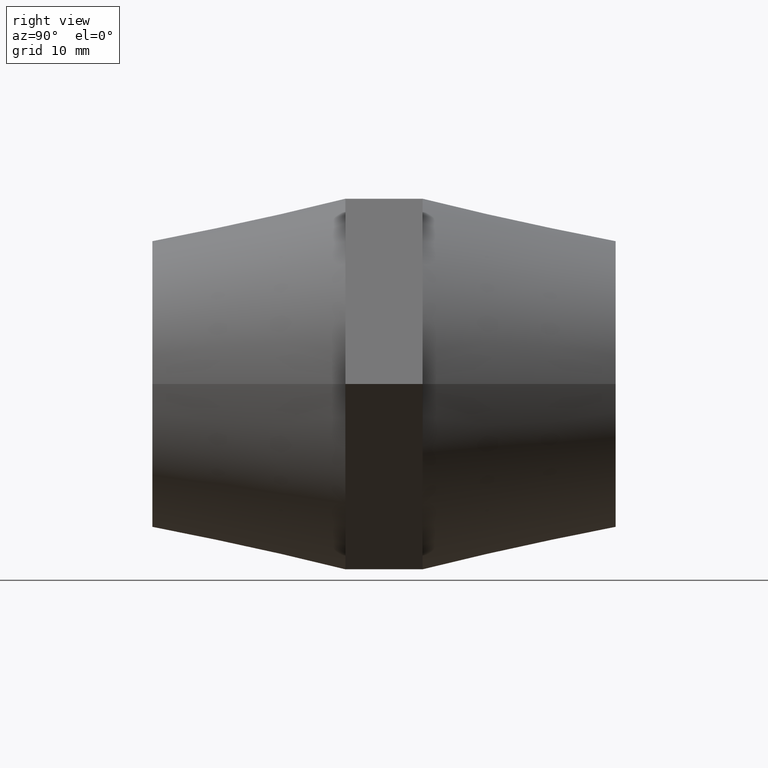
[diagram: clean part render]
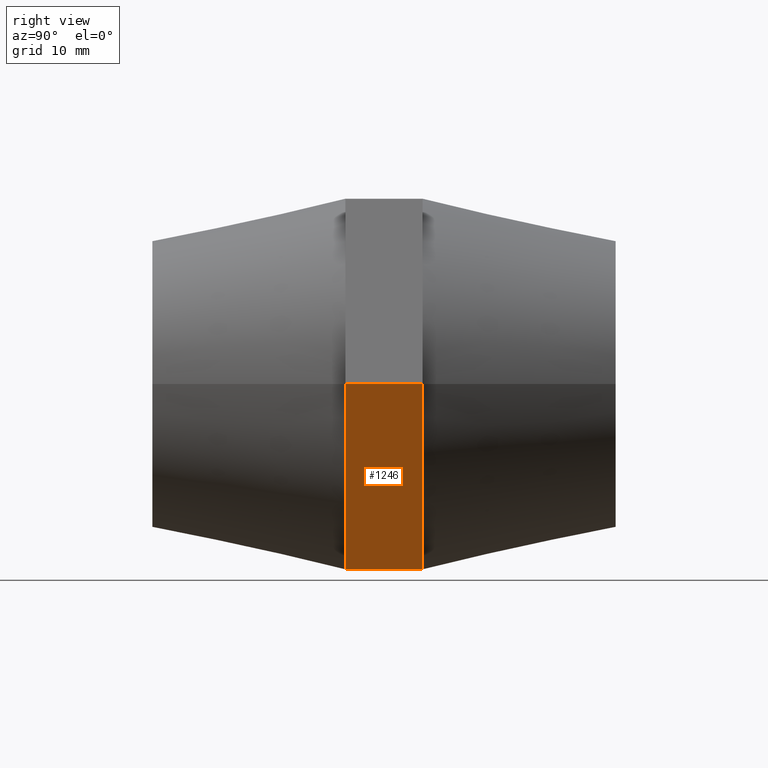
[diagram: same view with one face highlighted and labeled with its STEP entity id]
A machine part, right view. The second image highlights one B-rep face of the part: STEP entity #1246.
In plain terms, the highlighted planar face has unit normal (-0.866, 0, 0.5).
Its self-contained STEP definition (entity closure, byte-faithful):
#21 = CARTESIAN_POINT ( 'NONE',  ( 13.85640646055100000, -5.000000000000000000, -24.00000000000000000 ) ) ;
#60 = DIRECTION ( 'NONE',  ( -0.4999999999999998900, 0.0000000000000000000, -0.8660254037844387100 ) ) ;
#111 = DIRECTION ( 'NONE',  ( 0.0000000000000000000, -1.000000000000000000, 0.0000000000000000000 ) ) ;
#141 = LINE ( 'NONE', #2585, #3196 ) ;
#242 = DIRECTION ( 'NONE',  ( -0.4999999999999998900, 0.0000000000000000000, -0.8660254037844387100 ) ) ;
#305 = VECTOR ( 'NONE', #2398, 1000.000000000000000 ) ;
#408 = LINE ( 'NONE', #1859, #926 ) ;
#468 = VERTEX_POINT ( 'NONE', #1442 ) ;
#519 = CARTESIAN_POINT ( 'NONE',  ( 27.71281292110205300, 5.000000000000000000, -1.024206980640409900E-014 ) ) ;
#552 = EDGE_CURVE ( 'NONE', #2568, #468, #1137, .T. ) ;
#557 = ORIENTED_EDGE ( 'NONE', *, *, #2307, .T. ) ;
#754 = CARTESIAN_POINT ( 'NONE',  ( 13.85640646055100000, 5.000000000000000000, -24.00000000000000000 ) ) ;
#926 = VECTOR ( 'NONE', #60, 1000.000000000000000 ) ;
#1040 = EDGE_CURVE ( 'NONE', #2293, #1225, #141, .T. ) ;
#1057 = VECTOR ( 'NONE', #1860, 1000.000000000000000 ) ;
#1124 = LINE ( 'NONE', #754, #305 ) ;
#1132 = ORIENTED_EDGE ( 'NONE', *, *, #3800, .F. ) ;
#1137 = LINE ( 'NONE', #3960, #1057 ) ;
#1165 = EDGE_CURVE ( 'NONE', #3330, #2568, #3959, .T. ) ;
#1225 = VERTEX_POINT ( 'NONE', #2356 ) ;
#1244 = ORIENTED_EDGE ( 'NONE', *, *, #552, .F. ) ;
#1246 = ADVANCED_FACE ( 'NONE', ( #3151 ), #3595, .F. ) ;
#1271 = CARTESIAN_POINT ( 'NONE',  ( 20.78460969082650000, 5.000000000000000000, -12.00000000000000000 ) ) ;
#1292 = CARTESIAN_POINT ( 'NONE',  ( 27.71281292110205300, 5.000000000000000000, -1.024206980640409900E-014 ) ) ;
#1312 = CARTESIAN_POINT ( 'NONE',  ( 27.71281292110205300, 5.000000000000000000, -1.024206980640409900E-014 ) ) ;
#1442 = CARTESIAN_POINT ( 'NONE',  ( 13.85640646055100000, 5.000000000000000000, -24.00000000000000000 ) ) ;
#1445 = ORIENTED_EDGE ( 'NONE', *, *, #1040, .T. ) ;
#1546 = EDGE_CURVE ( 'NONE', #3330, #2293, #3543, .T. ) ;
#1745 = DIRECTION ( 'NONE',  ( -0.8660254037844387100, 0.0000000000000000000, 0.4999999999999998900 ) ) ;
#1859 = CARTESIAN_POINT ( 'NONE',  ( 27.71281292110205300, -5.000000000000000000, -1.024206980640409900E-014 ) ) ;
#1860 = DIRECTION ( 'NONE',  ( -0.4999999999999998900, 0.0000000000000000000, -0.8660254037844387100 ) ) ;
#2115 = ORIENTED_EDGE ( 'NONE', *, *, #1165, .F. ) ;
#2197 = CARTESIAN_POINT ( 'NONE',  ( 27.71281292110205300, -5.000000000000000000, -1.024206980640409900E-014 ) ) ;
#2293 = VERTEX_POINT ( 'NONE', #2197 ) ;
#2307 = EDGE_CURVE ( 'NONE', #1225, #3973, #408, .T. ) ;
#2356 = CARTESIAN_POINT ( 'NONE',  ( 20.78460969082655300, -5.000000000000000000, -12.00000000000000000 ) ) ;
#2398 = DIRECTION ( 'NONE',  ( 0.0000000000000000000, -1.000000000000000000, 0.0000000000000000000 ) ) ;
#2568 = VERTEX_POINT ( 'NONE', #1271 ) ;
#2585 = CARTESIAN_POINT ( 'NONE',  ( 27.71281292110205300, -5.000000000000000000, -1.024206980640409900E-014 ) ) ;
#2946 = VECTOR ( 'NONE', #242, 1000.000000000000000 ) ;
#2962 = DIRECTION ( 'NONE',  ( 0.4999999999999998900, 0.0000000000000000000, 0.8660254037844387100 ) ) ;
#3151 = FACE_OUTER_BOUND ( 'NONE', #3407, .T. ) ;
#3196 = VECTOR ( 'NONE', #3246, 1000.000000000000000 ) ;
#3246 = DIRECTION ( 'NONE',  ( -0.4999999999999998900, 0.0000000000000000000, -0.8660254037844387100 ) ) ;
#3252 = CARTESIAN_POINT ( 'NONE',  ( 27.71281292110205300, 5.000000000000000000, -1.024206980640409900E-014 ) ) ;
#3330 = VERTEX_POINT ( 'NONE', #1292 ) ;
#3331 = ORIENTED_EDGE ( 'NONE', *, *, #1546, .T. ) ;
#3407 = EDGE_LOOP ( 'NONE', ( #1445, #557, #1132, #1244, #2115, #3331 ) ) ;
#3447 = VECTOR ( 'NONE', #111, 1000.000000000000000 ) ;
#3543 = LINE ( 'NONE', #1312, #3447 ) ;
#3595 = PLANE ( 'NONE',  #3895 ) ;
#3800 = EDGE_CURVE ( 'NONE', #468, #3973, #1124, .T. ) ;
#3895 = AXIS2_PLACEMENT_3D ( 'NONE', #519, #1745, #2962 ) ;
#3959 = LINE ( 'NONE', #3252, #2946 ) ;
#3960 = CARTESIAN_POINT ( 'NONE',  ( 27.71281292110205300, 5.000000000000000000, -1.024206980640409900E-014 ) ) ;
#3973 = VERTEX_POINT ( 'NONE', #21 ) ;